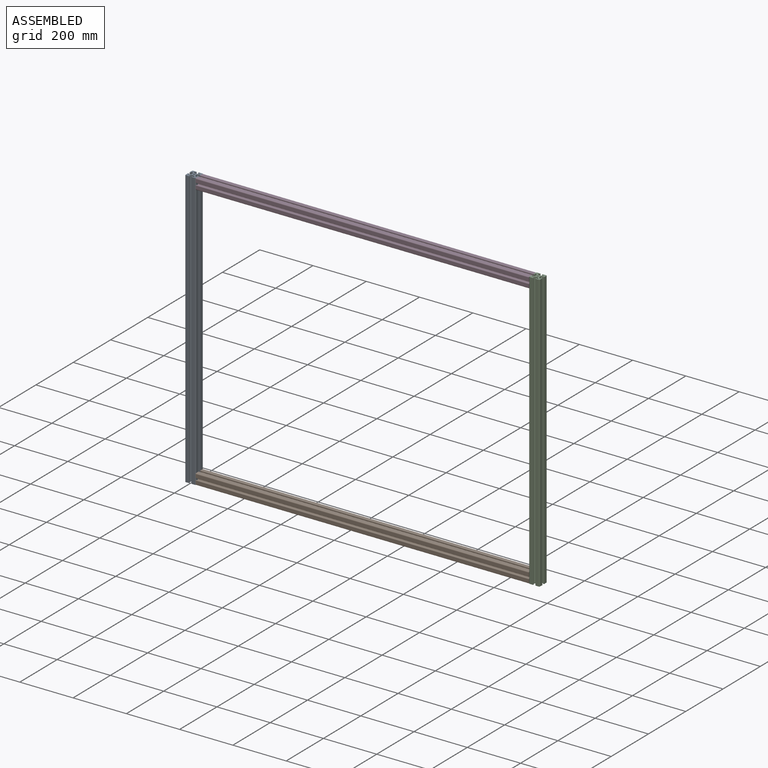
[diagram: assembled view]
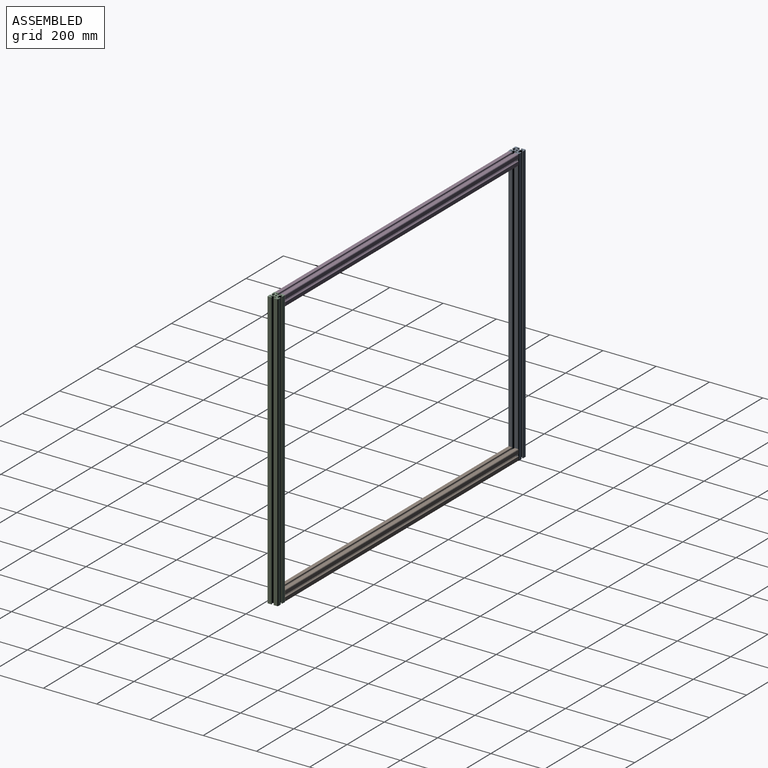
[diagram: assembled view, second angle]
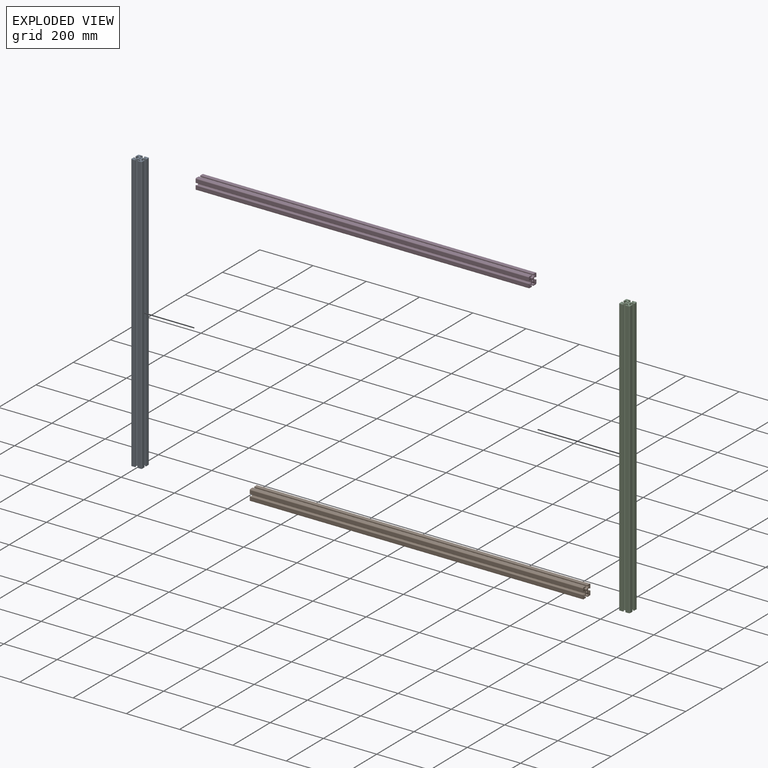
[diagram: exploded view]
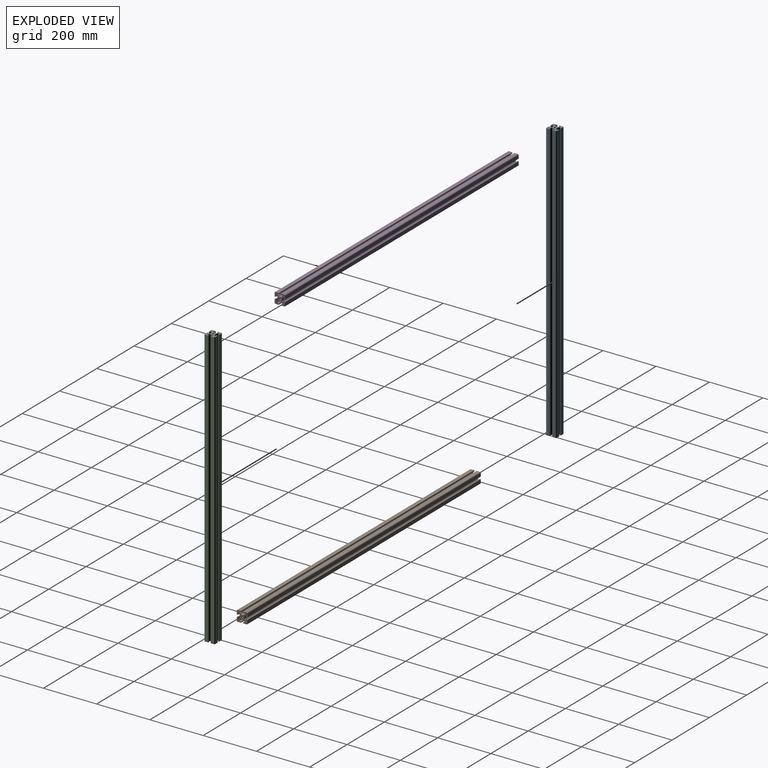
[diagram: exploded view, second angle]
ASSEMBLY  parts=4 mates=3
PART A: 75 faces, bbox 40x40x1041.4 mm
  f0: plane 1041.4x2.97mm, normal (1,0,0), area 3094.8mm2, adj f19,f23,f24,f74
  f1: plane 1041.4x12.19mm, normal (0,1,0), area 12694.1mm2, adj f19,f24,f25,f74
  f2: plane 1041.4x12.19mm, normal (-1,0,0), area 12694.1mm2, adj f19,f25,f26,f74
  f3: plane 1041.4x2.97mm, normal (0,-1,0), area 3094.8mm2, adj f19,f26,f27,f74
  f4: plane 1041.4x2.97mm, normal (0,1,0), area 3094.8mm2, adj f19,f37,f38,f74
  f5: plane 1041.4x12.19mm, normal (-1,0,0), area 12694.1mm2, adj f19,f38,f39,f74
  f6: plane 1041.4x12.19mm, normal (0,-1,0), area 12694.1mm2, adj f19,f39,f40,f74
  f7: plane 1041.4x2.97mm, normal (1,0,0), area 3094.8mm2, adj f19,f40,f41,f74
  f8: plane 1041.4x2.97mm, normal (-1,0,0), area 3094.8mm2, adj f19,f50,f51,f74
  f9: plane 1041.4x12.19mm, normal (0,-1,0), area 12694.1mm2, adj f19,f51,f52,f74
  f10: plane 1041.4x12.19mm, normal (1,0,0), area 12694.1mm2, adj f19,f52,f53,f74
  f11: plane 1041.4x2.97mm, normal (0,1,0), area 3094.8mm2, adj f19,f53,f54,f74
  f12: plane 1041.4x2.97mm, normal (0,-1,0), area 3094.8mm2, adj f19,f64,f65,f74
  f13: plane 1041.4x12.19mm, normal (1,0,0), area 12694.1mm2, adj f19,f65,f66,f74
  f14: plane 1041.4x12.19mm, normal (0,1,0), area 12694.1mm2, adj f19,f66,f67,f74
  f15: plane 1041.4x2.97mm, normal (-1,0,0), area 3094.8mm2, adj f19,f67,f68,f74
  f16: cylinder r=3.4mm len=1041.4mm, axis (0,0,-1), area 22270.8mm2, adj f19,f74
  f17: cylinder r=0.76mm len=1041.4mm, axis (0,0,-1), area 1869.8mm2, adj f19,f42,f43,f74
  f18: cylinder r=0.76mm len=1041.4mm, axis (0,0,-1), area 1869.8mm2, adj f19,f21,f22,f74
  f19: plane 40x40mm, normal (0,0,-1), area 909.5mm2, adj f0,f1,f2,f3,f4,f5,f6,f7
  f20: cylinder r=3mm len=1041.4mm, axis (0,0,-1), area 2451.5mm2, adj f19,f21,f73,f74
  f21: plane 1041.4x5.57mm, normal (0.71,0.71,0), area 8200.8mm2, adj f18,f19,f20,f74
  f22: plane 1041.4x5.46mm, normal (0,-1,0), area 5687.1mm2, adj f18,f19,f23,f74
  f23: cylinder r=0.76mm len=1041.4mm, axis (0,0,-1), area 1246.5mm2, adj f0,f19,f22,f74
  f24: cylinder r=0.76mm len=1041.4mm, axis (0,0,-1), area 1246.5mm2, adj f0,f1,f19,f74
  f25: cylinder r=3.05mm len=1041.4mm, axis (0,0,-1), area 4986mm2, adj f1,f2,f19,f74
  f26: cylinder r=0.76mm len=1041.4mm, axis (0,0,-1), area 1246.5mm2, adj f2,f3,f19,f74
  f27: cylinder r=0.76mm len=1041.4mm, axis (0,0,-1), area 1246.5mm2, adj f3,f19,f28,f74
  f28: plane 1041.4x5.46mm, normal (1,0,0), area 5687.1mm2, adj f19,f27,f29,f74
  f29: cylinder r=0.76mm len=1041.4mm, axis (0,0,-1), area 1869.8mm2, adj f19,f28,f30,f74
  f30: plane 1041.4x5.57mm, normal (-0.71,-0.71,0), area 8200.8mm2, adj f19,f29,f31,f74
  f31: cylinder r=3mm len=1041.4mm, axis (0,0,-1), area 2451.5mm2, adj f19,f30,f32,f74
  f32: plane 1041.4x6.15mm, normal (-1,0,0), area 6403.9mm2, adj f19,f31,f33,f74
  f33: cylinder r=3mm len=1041.4mm, axis (0,0,-1), area 2451.5mm2, adj f19,f32,f34,f74
  f34: plane 1041.4x5.57mm, normal (-0.71,0.71,0), area 8200.8mm2, adj f19,f33,f35,f74
  f35: cylinder r=0.76mm len=1041.4mm, axis (0,0,-1), area 1869.8mm2, adj f19,f34,f36,f74
  f36: plane 1041.4x5.46mm, normal (1,0,0), area 5687.1mm2, adj f19,f35,f37,f74
  f37: cylinder r=0.76mm len=1041.4mm, axis (0,0,-1), area 1246.5mm2, adj f4,f19,f36,f74
  f38: cylinder r=0.76mm len=1041.4mm, axis (0,0,-1), area 1246.5mm2, adj f4,f5,f19,f74
  f39: cylinder r=3.05mm len=1041.4mm, axis (0,0,-1), area 4986mm2, adj f5,f6,f19,f74
  f40: cylinder r=0.76mm len=1041.4mm, axis (0,0,-1), area 1246.5mm2, adj f6,f7,f19,f74
  f41: cylinder r=0.76mm len=1041.4mm, axis (0,0,-1), area 1246.5mm2, adj f7,f19,f42,f74
  f42: plane 1041.4x5.46mm, normal (0,1,0), area 5687.1mm2, adj f17,f19,f41,f74
  f43: plane 1041.4x5.57mm, normal (0.71,-0.71,0), area 8200.8mm2, adj f17,f19,f44,f74
  f44: cylinder r=3mm len=1041.4mm, axis (0,0,-1), area 2451.5mm2, adj f19,f43,f45,f74
  f45: plane 1041.4x6.15mm, normal (0,-1,0), area 6403.9mm2, adj f19,f44,f46,f74
  f46: cylinder r=3mm len=1041.4mm, axis (0,0,-1), area 2451.5mm2, adj f19,f45,f47,f74
  f47: plane 1041.4x5.57mm, normal (-0.71,-0.71,0), area 8200.8mm2, adj f19,f46,f48,f74
  f48: cylinder r=0.76mm len=1041.4mm, axis (0,0,-1), area 1869.8mm2, adj f19,f47,f49,f74
  f49: plane 1041.4x5.46mm, normal (0,1,0), area 5687.1mm2, adj f19,f48,f50,f74
  f50: cylinder r=0.76mm len=1041.4mm, axis (0,0,-1), area 1246.5mm2, adj f8,f19,f49,f74
  f51: cylinder r=0.76mm len=1041.4mm, axis (0,0,-1), area 1246.5mm2, adj f8,f9,f19,f74
  f52: cylinder r=3.05mm len=1041.4mm, axis (0,0,-1), area 4986mm2, adj f9,f10,f19,f74
  f53: cylinder r=0.76mm len=1041.4mm, axis (0,0,-1), area 1246.5mm2, adj f10,f11,f19,f74
  f54: cylinder r=0.76mm len=1041.4mm, axis (0,0,-1), area 1246.5mm2, adj f11,f19,f55,f74
  f55: plane 1041.4x5.46mm, normal (-1,0,0), area 5687.1mm2, adj f19,f54,f56,f74
  f56: cylinder r=0.76mm len=1041.4mm, axis (0,0,-1), area 1869.8mm2, adj f19,f55,f57,f74
  f57: plane 1041.4x5.57mm, normal (0.71,0.71,0), area 8200.8mm2, adj f19,f56,f58,f74
  f58: cylinder r=3mm len=1041.4mm, axis (0,0,-1), area 2451.5mm2, adj f19,f57,f59,f74
  f59: plane 1041.4x6.15mm, normal (1,0,0), area 6403.9mm2, adj f19,f58,f60,f74
  f60: cylinder r=3mm len=1041.4mm, axis (0,0,-1), area 2451.5mm2, adj f19,f59,f61,f74
  f61: plane 1041.4x5.57mm, normal (0.71,-0.71,0), area 8200.8mm2, adj f19,f60,f62,f74
  f62: cylinder r=0.76mm len=1041.4mm, axis (0,0,-1), area 1869.8mm2, adj f19,f61,f63,f74
  f63: plane 1041.4x5.46mm, normal (-1,0,0), area 5687.1mm2, adj f19,f62,f64,f74
  f64: cylinder r=0.76mm len=1041.4mm, axis (0,0,-1), area 1246.5mm2, adj f12,f19,f63,f74
  f65: cylinder r=0.76mm len=1041.4mm, axis (0,0,-1), area 1246.5mm2, adj f12,f13,f19,f74
  f66: cylinder r=3.05mm len=1041.4mm, axis (0,0,-1), area 4986mm2, adj f13,f14,f19,f74
  f67: cylinder r=0.76mm len=1041.4mm, axis (0,0,-1), area 1246.5mm2, adj f14,f15,f19,f74
  f68: cylinder r=0.76mm len=1041.4mm, axis (0,0,-1), area 1246.5mm2, adj f15,f19,f69,f74
  f69: plane 1041.4x5.46mm, normal (0,-1,0), area 5687.1mm2, adj f19,f68,f70,f74
  f70: cylinder r=0.76mm len=1041.4mm, axis (0,0,-1), area 1869.8mm2, adj f19,f69,f71,f74
  f71: plane 1041.4x5.57mm, normal (-0.71,0.71,0), area 8200.8mm2, adj f19,f70,f72,f74
  f72: cylinder r=3mm len=1041.4mm, axis (0,0,-1), area 2451.5mm2, adj f19,f71,f73,f74
  f73: plane 1041.4x6.15mm, normal (0,1,0), area 6403.9mm2, adj f19,f20,f72,f74
  f74: plane 40x40mm, normal (0,0,1), area 909.5mm2, adj f0,f1,f2,f3,f4,f5,f6,f7
PART B: 75 faces, bbox 1251x40x40 mm
  f0: cylinder r=3.4mm len=1250.95mm, axis (-1,0,0), area 26752.1mm2, adj f3,f74
  f1: cylinder r=0.76mm len=1250.95mm, axis (-1,0,0), area 2246mm2, adj f3,f34,f35,f74
  f2: cylinder r=0.76mm len=1250.95mm, axis (-1,0,0), area 2246mm2, adj f3,f5,f6,f74
  f3: plane 40x40mm, normal (-1,0,0), area 909.5mm2, adj f0,f1,f2,f4,f5,f6,f7,f8
  f4: cylinder r=3mm len=1250.95mm, axis (-1,0,0), area 2944.7mm2, adj f3,f5,f73,f74
  f5: plane 1250.95x5.57mm, normal (0,0.71,-0.71), area 9851mm2, adj f2,f3,f4,f74
  f6: plane 1250.95x5.46mm, normal (0,-1,0), area 6831.4mm2, adj f2,f3,f7,f74
  f7: cylinder r=0.76mm len=1250.95mm, axis (-1,0,0), area 1497.3mm2, adj f3,f6,f8,f74
  f8: plane 1250.95x2.97mm, normal (0,0,-1), area 3717.6mm2, adj f3,f7,f9,f74
  f9: cylinder r=0.76mm len=1250.95mm, axis (-1,0,0), area 1497.3mm2, adj f3,f8,f10,f74
  f10: plane 1250.95x12.19mm, normal (0,1,0), area 15248.5mm2, adj f3,f9,f11,f74
  f11: cylinder r=3.05mm len=1250.95mm, axis (-1,0,0), area 5989.3mm2, adj f3,f10,f12,f74
  f12: plane 1250.95x12.19mm, normal (0,0,1), area 15248.5mm2, adj f3,f11,f13,f74
  f13: cylinder r=0.76mm len=1250.95mm, axis (-1,0,0), area 1497.3mm2, adj f3,f12,f14,f74
  f14: plane 1250.95x2.97mm, normal (0,-1,0), area 3717.6mm2, adj f3,f13,f15,f74
  f15: cylinder r=0.76mm len=1250.95mm, axis (-1,0,0), area 1497.3mm2, adj f3,f14,f16,f74
  f16: plane 1250.95x5.46mm, normal (0,0,-1), area 6831.4mm2, adj f3,f15,f17,f74
  f17: cylinder r=0.76mm len=1250.95mm, axis (-1,0,0), area 2246mm2, adj f3,f16,f18,f74
  f18: plane 1250.95x5.57mm, normal (0,-0.71,0.71), area 9851mm2, adj f3,f17,f19,f74
  f19: cylinder r=3mm len=1250.95mm, axis (-1,0,0), area 2944.7mm2, adj f3,f18,f20,f74
  f20: plane 1250.95x6.15mm, normal (0,0,1), area 7692.5mm2, adj f3,f19,f21,f74
  f21: cylinder r=3mm len=1250.95mm, axis (-1,0,0), area 2944.7mm2, adj f3,f20,f22,f74
  f22: plane 1250.95x5.57mm, normal (0,0.71,0.71), area 9851mm2, adj f3,f21,f23,f74
  f23: cylinder r=0.76mm len=1250.95mm, axis (-1,0,0), area 2246mm2, adj f3,f22,f24,f74
  f24: plane 1250.95x5.46mm, normal (0,0,-1), area 6831.4mm2, adj f3,f23,f25,f74
  f25: cylinder r=0.76mm len=1250.95mm, axis (-1,0,0), area 1497.3mm2, adj f3,f24,f26,f74
  f26: plane 1250.95x2.97mm, normal (0,1,0), area 3717.6mm2, adj f3,f25,f27,f74
  f27: cylinder r=0.76mm len=1250.95mm, axis (-1,0,0), area 1497.3mm2, adj f3,f26,f28,f74
  f28: plane 1250.95x12.19mm, normal (0,0,1), area 15248.5mm2, adj f3,f27,f29,f74
  f29: cylinder r=3.05mm len=1250.95mm, axis (-1,0,0), area 5989.3mm2, adj f3,f28,f30,f74
  f30: plane 1250.95x12.19mm, normal (0,-1,0), area 15248.5mm2, adj f3,f29,f31,f74
  f31: cylinder r=0.76mm len=1250.95mm, axis (-1,0,0), area 1497.3mm2, adj f3,f30,f32,f74
  f32: plane 1250.95x2.97mm, normal (0,0,-1), area 3717.6mm2, adj f3,f31,f33,f74
  f33: cylinder r=0.76mm len=1250.95mm, axis (-1,0,0), area 1497.3mm2, adj f3,f32,f34,f74
  f34: plane 1250.95x5.46mm, normal (0,1,0), area 6831.4mm2, adj f1,f3,f33,f74
  f35: plane 1250.95x5.57mm, normal (0,-0.71,-0.71), area 9851mm2, adj f1,f3,f36,f74
  f36: cylinder r=3mm len=1250.95mm, axis (-1,0,0), area 2944.7mm2, adj f3,f35,f37,f74
  f37: plane 1250.95x6.15mm, normal (0,-1,0), area 7692.5mm2, adj f3,f36,f38,f74
  f38: cylinder r=3mm len=1250.95mm, axis (-1,0,0), area 2944.7mm2, adj f3,f37,f39,f74
  f39: plane 1250.95x5.57mm, normal (0,-0.71,0.71), area 9851mm2, adj f3,f38,f40,f74
  f40: cylinder r=0.76mm len=1250.95mm, axis (-1,0,0), area 2246mm2, adj f3,f39,f41,f74
  f41: plane 1250.95x5.46mm, normal (0,1,0), area 6831.4mm2, adj f3,f40,f42,f74
  f42: cylinder r=0.76mm len=1250.95mm, axis (-1,0,0), area 1497.3mm2, adj f3,f41,f43,f74
  f43: plane 1250.95x2.97mm, normal (0,0,1), area 3717.6mm2, adj f3,f42,f44,f74
  f44: cylinder r=0.76mm len=1250.95mm, axis (-1,0,0), area 1497.3mm2, adj f3,f43,f45,f74
  f45: plane 1250.95x12.19mm, normal (0,-1,0), area 15248.5mm2, adj f3,f44,f46,f74
  f46: cylinder r=3.05mm len=1250.95mm, axis (-1,0,0), area 5989.3mm2, adj f3,f45,f47,f74
  f47: plane 1250.95x12.19mm, normal (0,0,-1), area 15248.5mm2, adj f3,f46,f48,f74
  f48: cylinder r=0.76mm len=1250.95mm, axis (-1,0,0), area 1497.3mm2, adj f3,f47,f49,f74
  f49: plane 1250.95x2.97mm, normal (0,1,0), area 3717.6mm2, adj f3,f48,f50,f74
  f50: cylinder r=0.76mm len=1250.95mm, axis (-1,0,0), area 1497.3mm2, adj f3,f49,f51,f74
  f51: plane 1250.95x5.46mm, normal (0,0,1), area 6831.4mm2, adj f3,f50,f52,f74
  f52: cylinder r=0.76mm len=1250.95mm, axis (-1,0,0), area 2246mm2, adj f3,f51,f53,f74
  f53: plane 1250.95x5.57mm, normal (0,0.71,-0.71), area 9851mm2, adj f3,f52,f54,f74
  f54: cylinder r=3mm len=1250.95mm, axis (-1,0,0), area 2944.7mm2, adj f3,f53,f55,f74
  f55: plane 1250.95x6.15mm, normal (0,0,-1), area 7692.5mm2, adj f3,f54,f56,f74
  f56: cylinder r=3mm len=1250.95mm, axis (-1,0,0), area 2944.7mm2, adj f3,f55,f57,f74
  f57: plane 1250.95x5.57mm, normal (0,-0.71,-0.71), area 9851mm2, adj f3,f56,f58,f74
  f58: cylinder r=0.76mm len=1250.95mm, axis (-1,0,0), area 2246mm2, adj f3,f57,f59,f74
  f59: plane 1250.95x5.46mm, normal (0,0,1), area 6831.4mm2, adj f3,f58,f60,f74
  f60: cylinder r=0.76mm len=1250.95mm, axis (-1,0,0), area 1497.3mm2, adj f3,f59,f61,f74
  f61: plane 1250.95x2.97mm, normal (0,-1,0), area 3717.6mm2, adj f3,f60,f62,f74
  f62: cylinder r=0.76mm len=1250.95mm, axis (-1,0,0), area 1497.3mm2, adj f3,f61,f63,f74
  f63: plane 1250.95x12.19mm, normal (0,0,-1), area 15248.5mm2, adj f3,f62,f64,f74
  f64: cylinder r=3.05mm len=1250.95mm, axis (-1,0,0), area 5989.3mm2, adj f3,f63,f65,f74
  f65: plane 1250.95x12.19mm, normal (0,1,0), area 15248.5mm2, adj f3,f64,f66,f74
  f66: cylinder r=0.76mm len=1250.95mm, axis (-1,0,0), area 1497.3mm2, adj f3,f65,f67,f74
  f67: plane 1250.95x2.97mm, normal (0,0,1), area 3717.6mm2, adj f3,f66,f68,f74
  f68: cylinder r=0.76mm len=1250.95mm, axis (-1,0,0), area 1497.3mm2, adj f3,f67,f69,f74
  f69: plane 1250.95x5.46mm, normal (0,-1,0), area 6831.4mm2, adj f3,f68,f70,f74
  f70: cylinder r=0.76mm len=1250.95mm, axis (-1,0,0), area 2246mm2, adj f3,f69,f71,f74
  f71: plane 1250.95x5.57mm, normal (0,0.71,0.71), area 9851mm2, adj f3,f70,f72,f74
  f72: cylinder r=3mm len=1250.95mm, axis (-1,0,0), area 2944.7mm2, adj f3,f71,f73,f74
  f73: plane 1250.95x6.15mm, normal (0,1,0), area 7692.5mm2, adj f3,f4,f72,f74
  f74: plane 40x40mm, normal (1,0,0), area 909.5mm2, adj f0,f1,f2,f4,f5,f6,f7,f8
PART C: same geometry as A
PART D: same geometry as B
PLACE A t=(31.96,-739.85,-531.65)mm
PLACE B t=(31.96,-739.85,-531.65)mm
PLACE C t=(1322.91,-739.85,-531.65)mm
PLACE D rot(axis=(1,0,0),180deg) t=(31.96,-739.85,-709.45)mm
MATE fastened D.f3 <-> A.f13  axis (-1,0,0) through (51.96,-735.09,-99.85)mm
MATE fastened B.f3 <-> A.f10  axis (-1,0,0) through (51.96,-744.61,-1141.25)mm
MATE fastened C.f5 <-> D.f74  axis (-1,0,0) through (1302.91,-744.61,-99.85)mm
